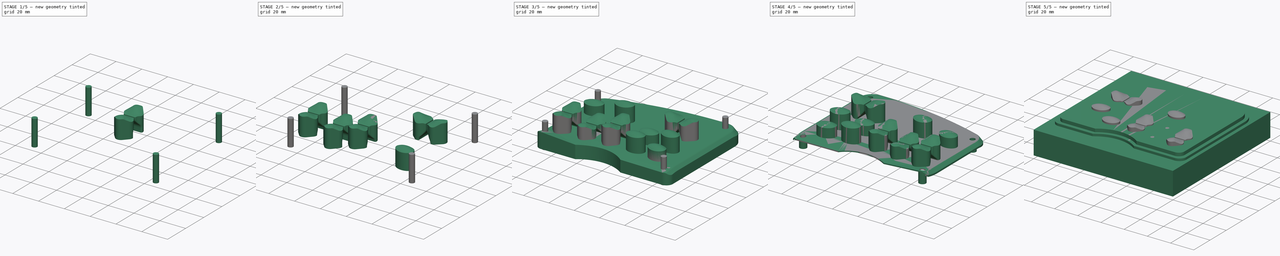
[diagram: build sequence overview — one tinted view per stage of 5, left to right]
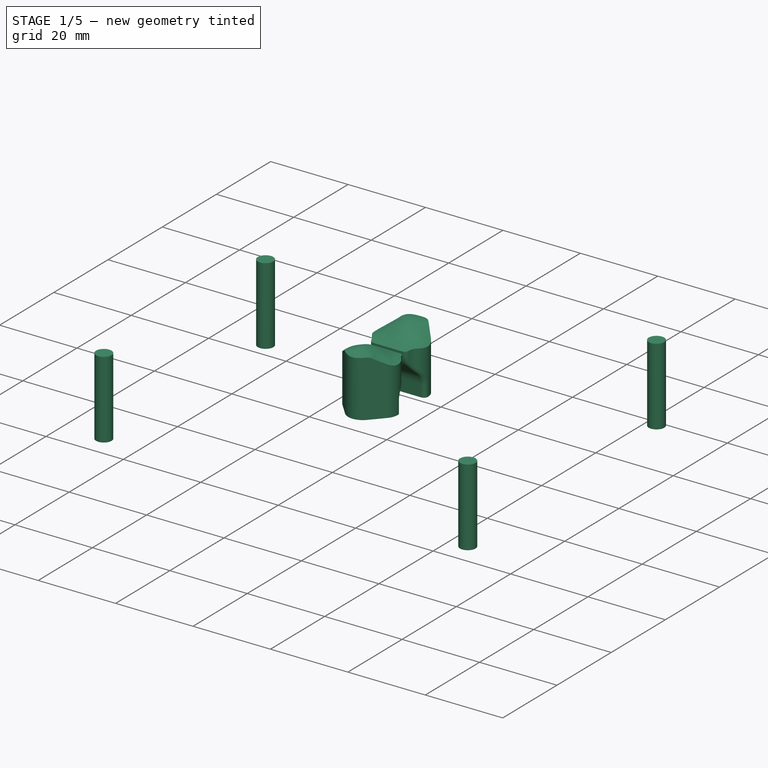
[diagram: stage 1 of 5 — iso view after this stage's code; geometry added in this stage tinted green]
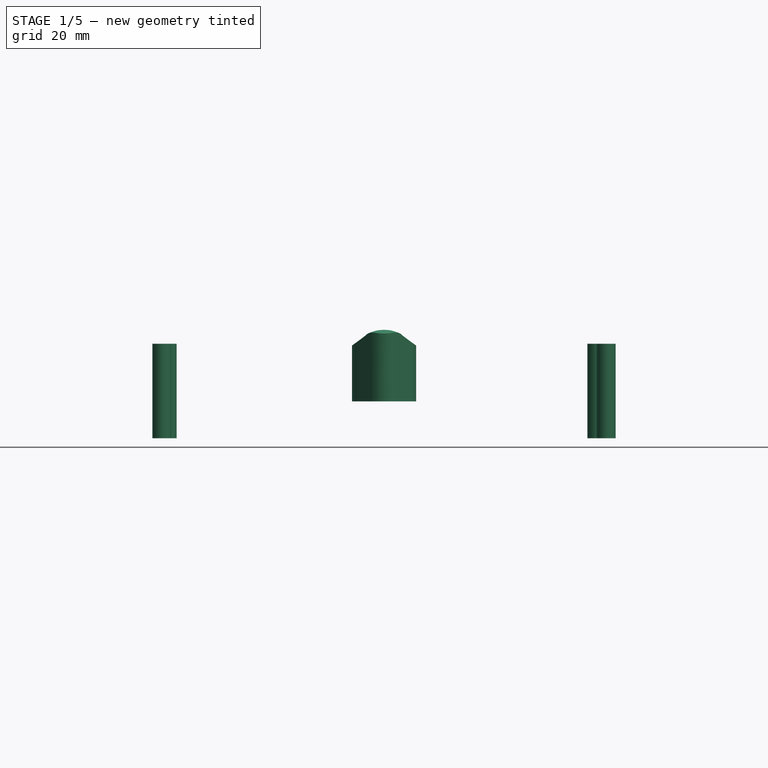
[diagram: stage 1 of 5 — front view after this stage's code; geometry added in this stage tinted green]
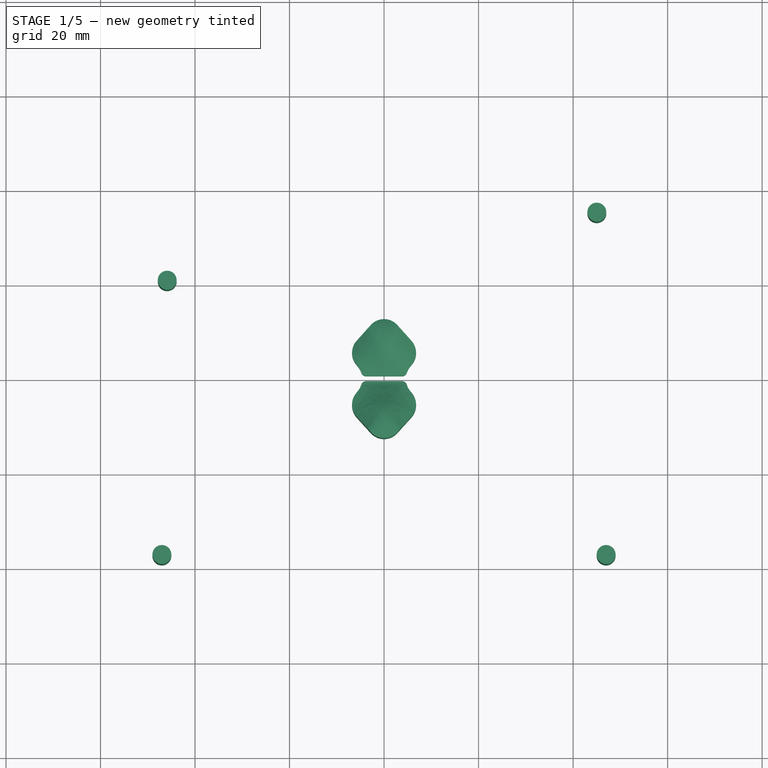
[diagram: stage 1 of 5 — top view after this stage's code; geometry added in this stage tinted green]
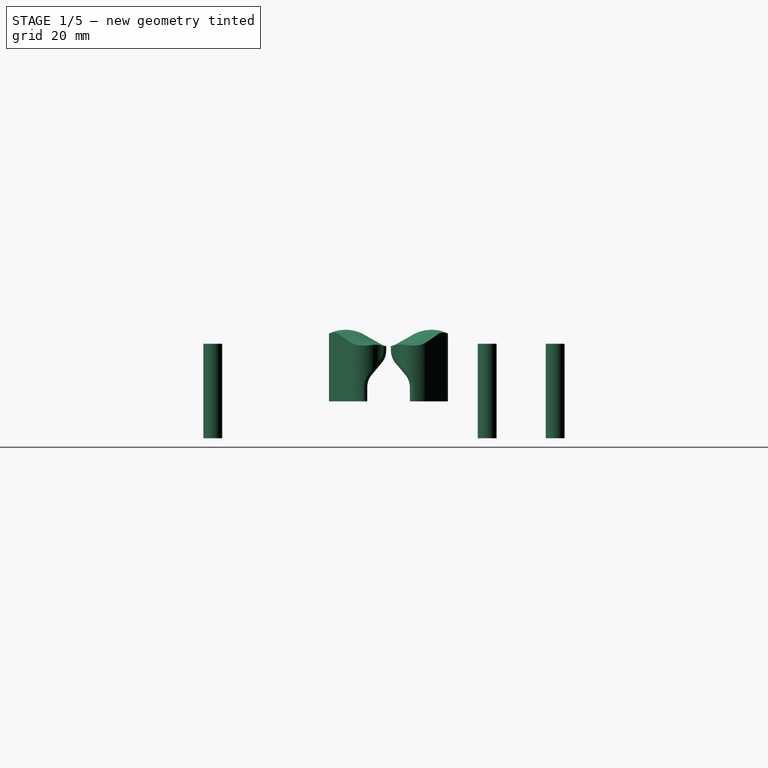
[diagram: stage 1 of 5 — right view after this stage's code; geometry added in this stage tinted green]
FCSTD DOCUMENT  (FreeCAD 0.17R13509 (Git))
Label: left_buttons
License: All rights reserved
LicenseURL: http://en.wikipedia.org/wiki/All_rights_reserved
objects: Part::FeaturePython×13, Part::Feature×12, Sketcher::SketchObject×6, PartDesign::Pad×6, Part::MultiFuse×6, Part::Cut×3, Part::MultiCommon×1, Part::Thickness×1, Part::Mirroring×1
note: 55 computed .brp shape members not serialized (recipe doc carries the construction recipe); baked Part::Feature solids carry a one-line shape summary decoded from their .brp

FEATURE [Part::Feature] Part__Feature005  label="Fillet"
  shape: bbox 14 x 18.98 x 18.65 mm, 33 faces (baked)
FEATURE [Part::Feature] Part__Feature006  label="Fillet001"
  shape: bbox 14 x 17.81 x 18.65 mm, 33 faces (baked)
FEATURE [Part::MultiFuse] Fusion001  label="sw_short_base"
  Shapes = -> [Part__Feature006,Part__Feature005]
FEATURE [Sketcher::SketchObject] Sketch003
  MapMode = 5
  Placement = pos=(0,0,-7) rot=(0,0,1;0rad)
  sketch-geometry (4):
    g0: Circle CenterX=-45.8812 CenterY=20.8615 CenterZ=0 NormalX=0 NormalY=0 NormalZ=1 AngleXU=0 Radius=2
    g1: Circle CenterX=-46.9795 CenterY=-37.2115 CenterZ=0 NormalX=0 NormalY=0 NormalZ=1 AngleXU=0 Radius=2
    g2: Circle CenterX=45.0081 CenterY=35.2441 CenterZ=0 NormalX=0 NormalY=0 NormalZ=1 AngleXU=0 Radius=2
    g3: Circle CenterX=46.9819 CenterY=-37.1987 CenterZ=0 NormalX=0 NormalY=0 NormalZ=1 AngleXU=0 Radius=2
  constraints (4):
    c: Radius(g1) = 2
    c: Equal(g3,g1)
    c: Equal(g1,g0)
    c: Equal(g0,g2)
FEATURE [PartDesign::Pad] Pad002  label="screw_holes"
  Length = 20
  Length2 = 100
  Placement = pos=(0,0,-7) rot=(0,0,1;0rad)
  Profile = -> Sketch003
  Type = 0
FEATURE [Part::FeaturePython] Clone011  label="screw_holes001"  # Draft clone (typed FeaturePython)
  AttacherType = Attacher::AttachEngine3D
  Fuse = false
  Objects = -> [Pad002]
  Placement = pos=(90.9,14.4,-7) rot=(0,0,1;0rad)
  Scale = (1,1,1)
FEATURE [Part::FeaturePython] Clone012  label="screw_holes002"  # Draft clone (typed FeaturePython)
  AttacherType = Attacher::AttachEngine3D
  Fuse = false
  Objects = -> [Clone011]
  Placement = pos=(92.87,-58.05,-7) rot=(0,0,1;0rad)
  Scale = (1,1,1)
FEATURE [Part::FeaturePython] Clone013  label="screw_holes003"  # Draft clone (typed FeaturePython)
  AttacherType = Attacher::AttachEngine3D
  Fuse = false
  Objects = -> [Clone012]
  Placement = pos=(-1.13,-58.05,-7) rot=(0,0,1;0rad)
  Scale = (1,1,1)
FEATURE [Part::MultiFuse] Fusion005
  Shapes = -> [Pad002,Clone011,Clone012,Clone013]
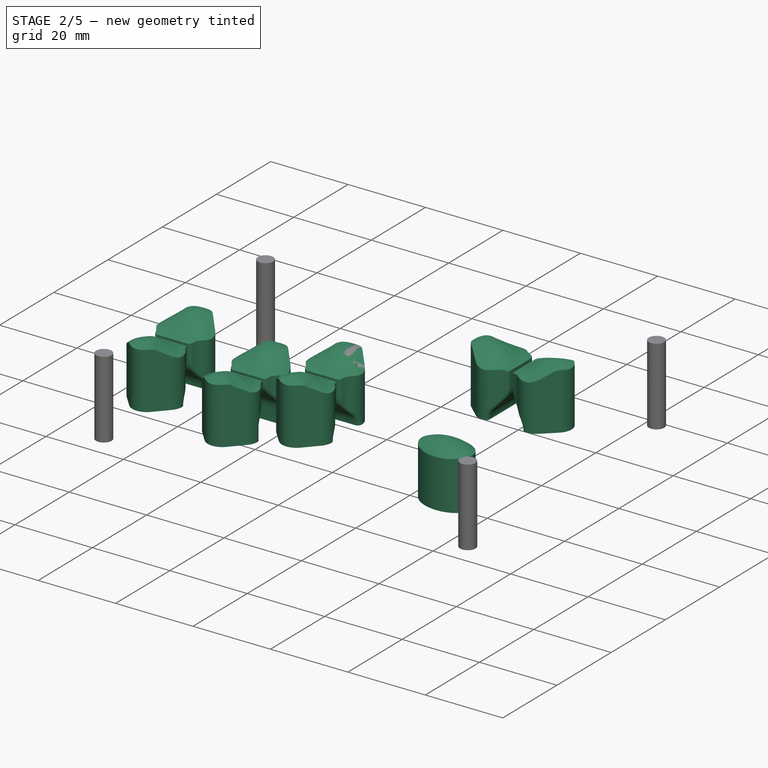
[diagram: stage 2 of 5 — iso view after this stage's code; geometry added in this stage tinted green]
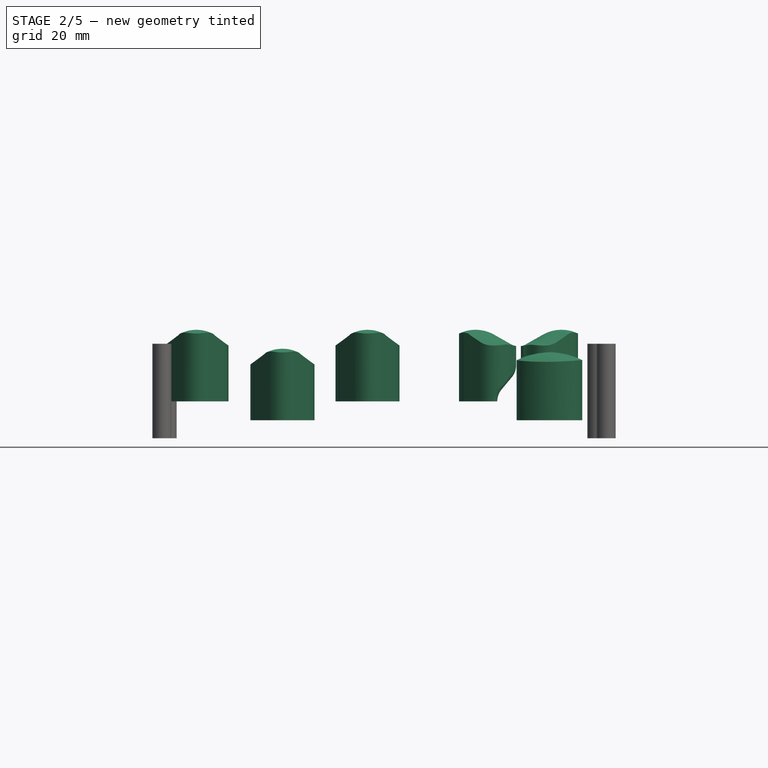
[diagram: stage 2 of 5 — front view after this stage's code; geometry added in this stage tinted green]
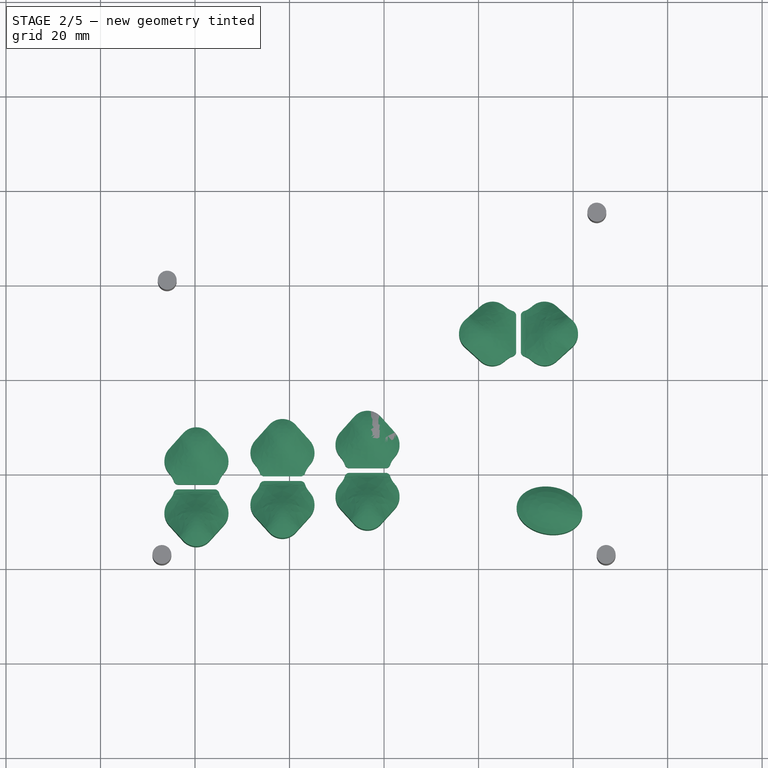
[diagram: stage 2 of 5 — top view after this stage's code; geometry added in this stage tinted green]
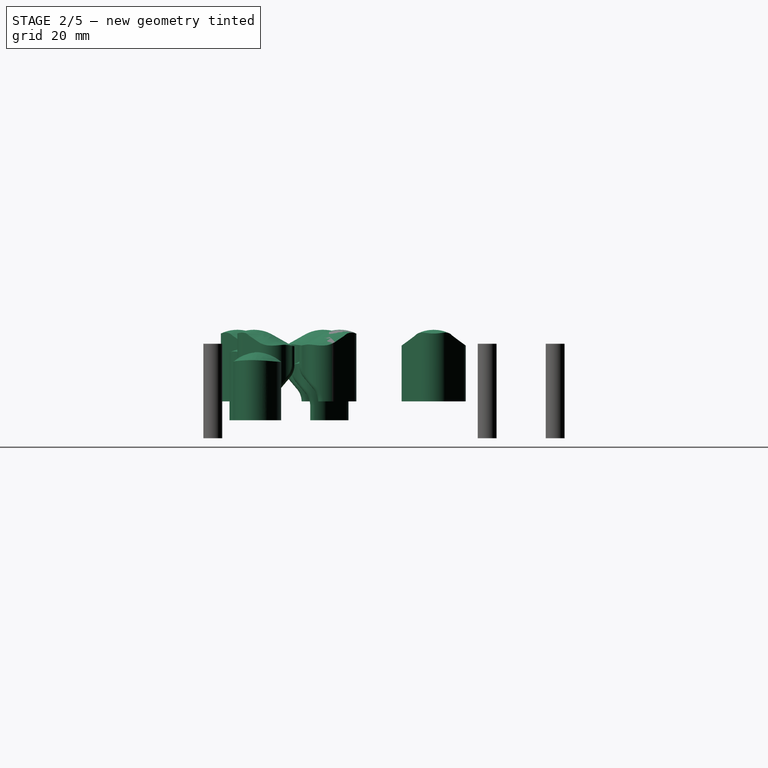
[diagram: stage 2 of 5 — right view after this stage's code; geometry added in this stage tinted green]
FEATURE [Part::Feature] Solid
  shape: bbox 121 x 102.6 x 20.47 mm, 25 faces (baked)
FEATURE [Part::Feature] Part__Feature002  label="but_base"
  shape: bbox 34.77 x 29.5 x 14.4 mm, 4 faces (baked)
FEATURE [Part::Feature] Part__Feature003  label="sw_base001"
  shape: bbox 14 x 17.81 x 18.83 mm, 30 faces (baked)
FEATURE [Part::Feature] Part__Feature004  label="sw_base002"
  shape: bbox 14 x 18.98 x 18.83 mm, 30 faces (baked)
FEATURE [Part::MultiFuse] Fusion  label="sw_base"
  Shapes = -> [Part__Feature004,Part__Feature003]
FEATURE [Part::FeaturePython] Clone005  label="but6"  # Draft clone (typed FeaturePython)
  Objects = -> [Part__Feature002]
  Placement = pos=(35,-27.8,-4) rot=(0,0,-1;0.174533rad)
  Scale = (1,1,1)
FEATURE [Part::FeaturePython] Clone006  label="sw1"  # Draft clone (typed FeaturePython)
  Objects = -> [Fusion]
  Placement = pos=(-39.7,-22.9,0) rot=(0,0,1;0rad)
  Scale = (1,1,1)
FEATURE [Part::FeaturePython] Clone008  label="sw3"  # Draft clone (typed FeaturePython)
  Objects = -> [Fusion]
  Placement = pos=(-3.5,-19.4,0) rot=(0,0,1;0rad)
  Scale = (1,1,1)
FEATURE [Part::FeaturePython] Clone009  label="sw4"  # Draft clone (typed FeaturePython)
  Objects = -> [Fusion]
  Placement = pos=(28.45,9.55,0) rot=(0,0,1;1.5708rad)
  Scale = (1,1,1)
FEATURE [Part::FeaturePython] Clone010  label="sw2"  # Draft clone (typed FeaturePython)
  Objects = -> [Fusion001]
  Placement = pos=(-21.5,-21.07,-4) rot=(0,0,1;0rad)
  Scale = (1,1,1)
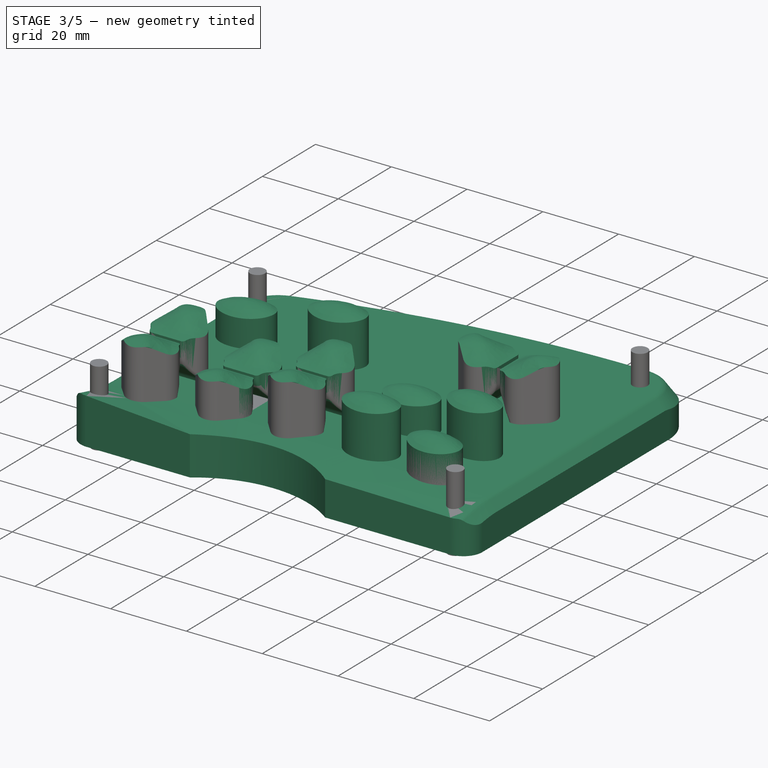
[diagram: stage 3 of 5 — iso view after this stage's code; geometry added in this stage tinted green]
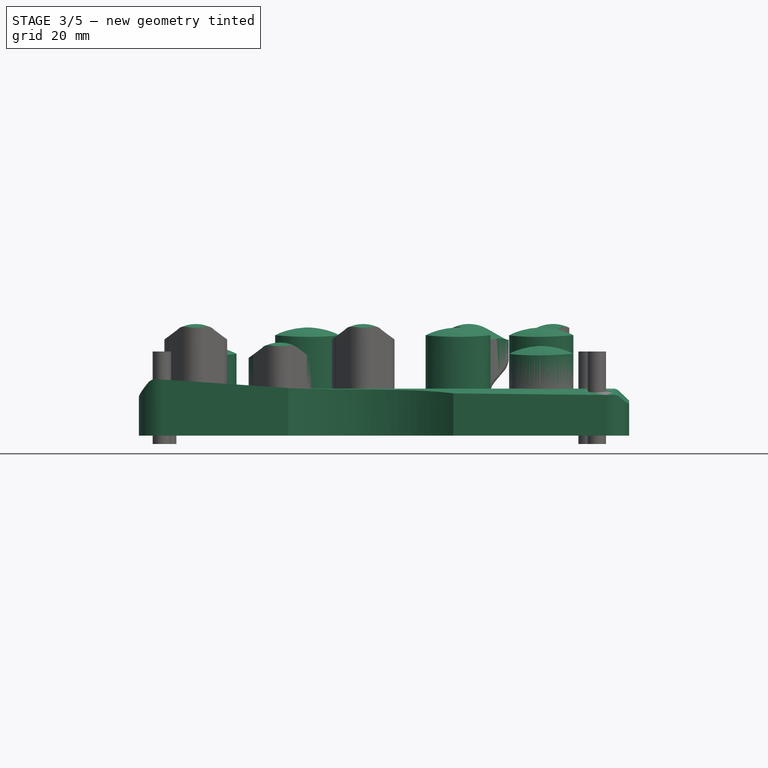
[diagram: stage 3 of 5 — front view after this stage's code; geometry added in this stage tinted green]
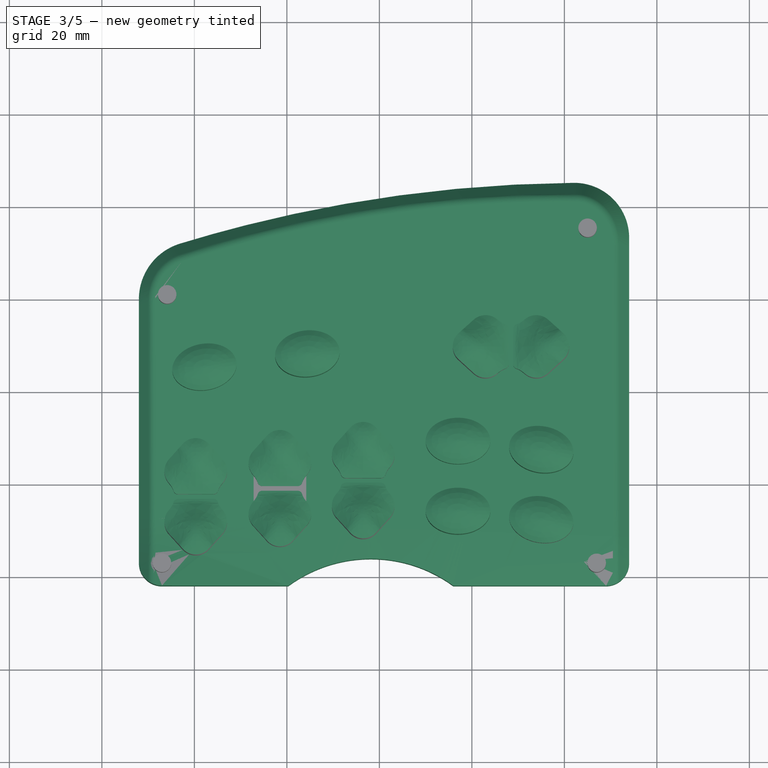
[diagram: stage 3 of 5 — top view after this stage's code; geometry added in this stage tinted green]
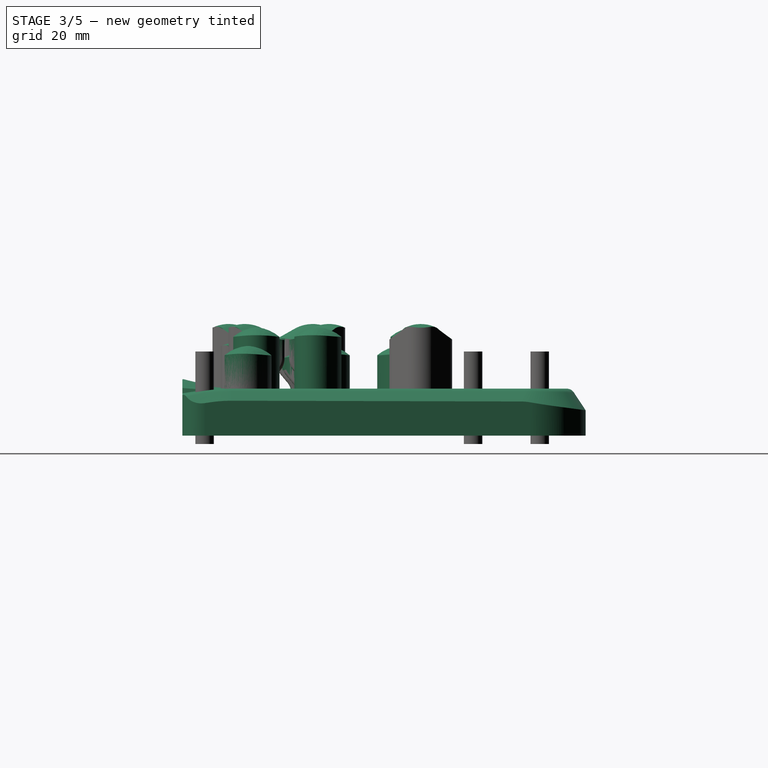
[diagram: stage 3 of 5 — right view after this stage's code; geometry added in this stage tinted green]
FEATURE [Part::FeaturePython] Clone  label="but1"  # Draft clone (typed FeaturePython)
  Objects = -> [Part__Feature002]
  Placement = pos=(-37.83,5.2,-4) rot=(0,0,1;0.174533rad)
  Scale = (1,1,1)
FEATURE [Part::FeaturePython] Clone001  label="but2"  # Draft clone (typed FeaturePython)
  Objects = -> [Part__Feature002]
  Placement = pos=(-15.57,8.02,0) rot=(0,0,1;0.10472rad)
  Scale = (1,1,1)
FEATURE [Part::FeaturePython] Clone002  label="but3"  # Draft clone (typed FeaturePython)
  Objects = -> [Part__Feature002]
  Placement = pos=(17,-10.8,-4) rot=(0,0,1;0rad)
  Scale = (1,1,1)
FEATURE [Part::FeaturePython] Clone003  label="but4"  # Draft clone (typed FeaturePython)
  Objects = -> [Part__Feature002]
  Placement = pos=(17,-26,0) rot=(0,0,1;0rad)
  Scale = (1,1,1)
FEATURE [Part::FeaturePython] Clone004  label="but5"  # Draft clone (typed FeaturePython)
  Objects = -> [Part__Feature002]
  Placement = pos=(35,-12.7,0) rot=(0,0,-1;0.174533rad)
  Scale = (1,1,1)
FEATURE [Part::MultiFuse] Fusion002  label="buttons"
  Placement = pos=(0,0,3) rot=(0,0,1;0rad)
  Shapes = -> [Clone009,Clone001,Clone003,Clone004,Clone008,Clone005,Clone002,Clone006,Clone,Clone010]
FEATURE [Part::MultiFuse] Fusion003
  Shapes = -> [Fusion002,Solid]
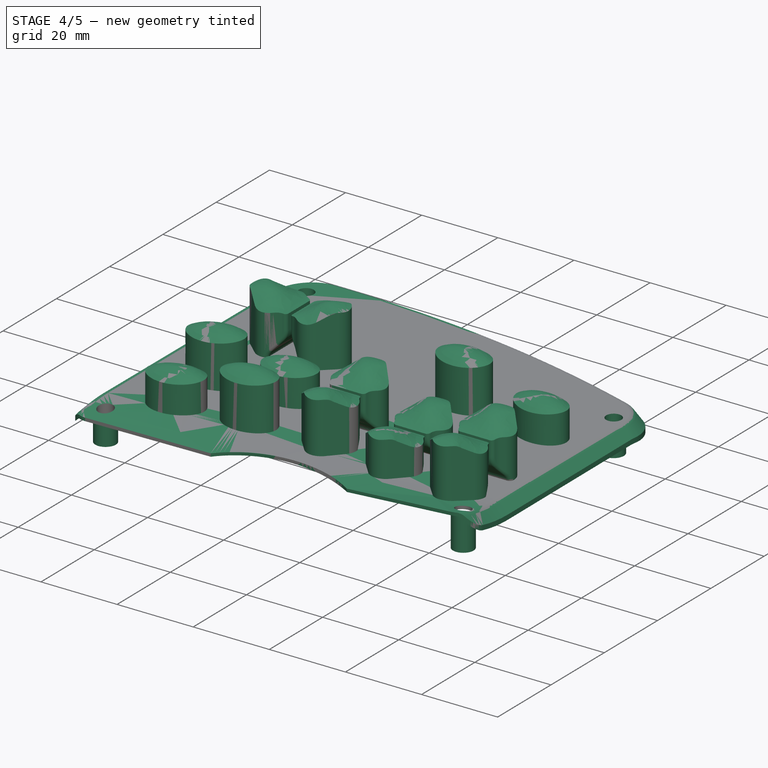
[diagram: stage 4 of 5 — iso view after this stage's code; geometry added in this stage tinted green]
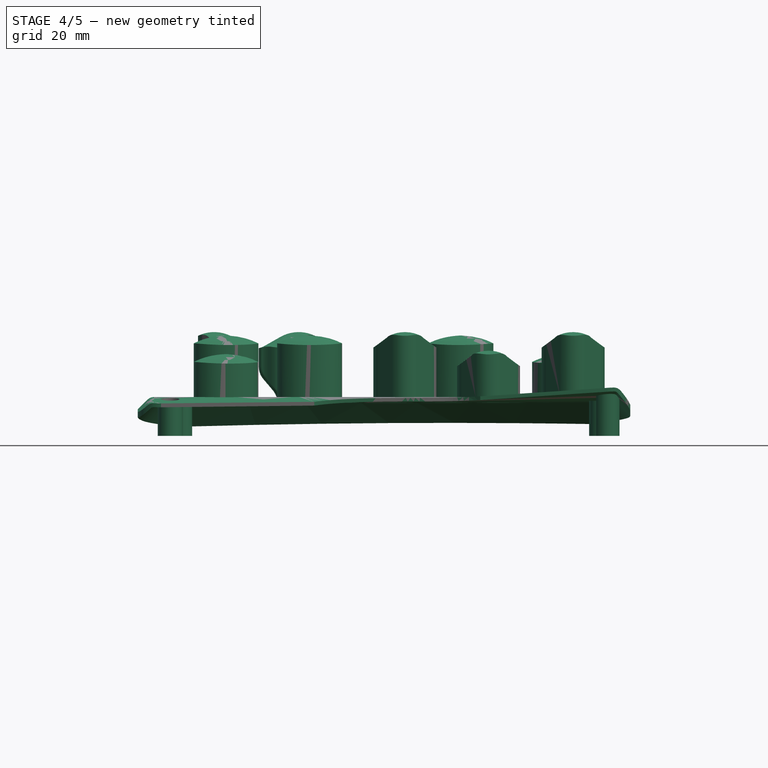
[diagram: stage 4 of 5 — front view after this stage's code; geometry added in this stage tinted green]
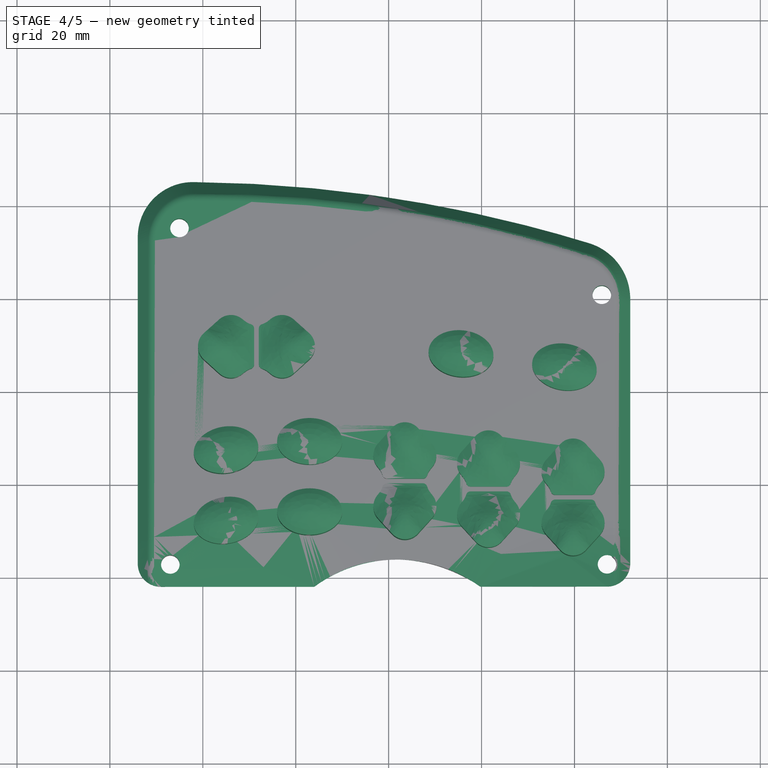
[diagram: stage 4 of 5 — top view after this stage's code; geometry added in this stage tinted green]
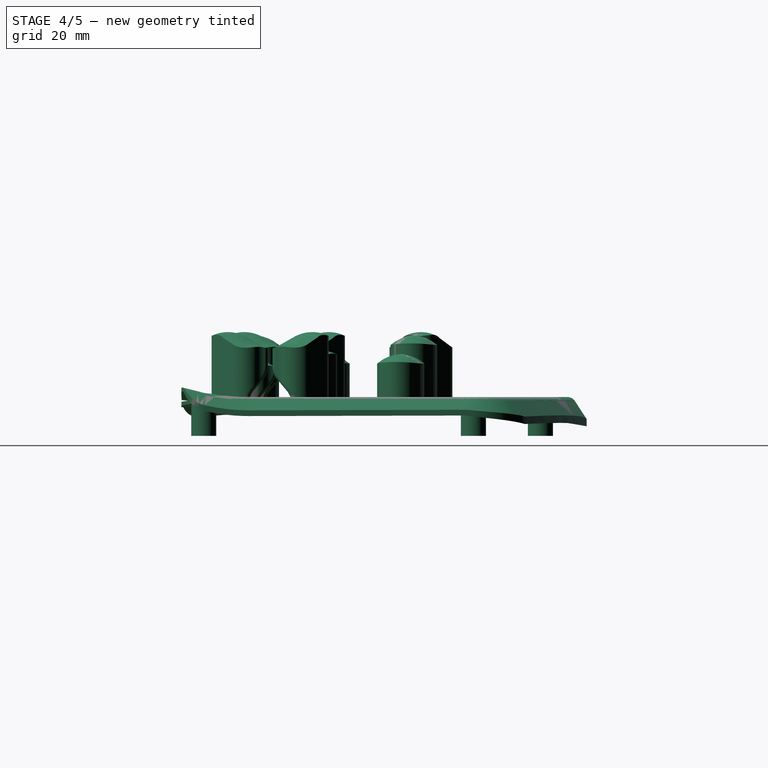
[diagram: stage 4 of 5 — right view after this stage's code; geometry added in this stage tinted green]
FEATURE [Part::Feature] Part__Feature007  label="pcb"
  Placement = pos=(0,0,-3.6) rot=(0,0,1;0rad)
  shape: bbox 99.95 x 80.42 x 43.3 mm, 3770 faces (baked)
FEATURE [Sketcher::SketchObject] Sketch
  MapMode = 5
  Placement = pos=(0,0,8) rot=(0,0,1;0rad)
  sketch-geometry (6):
    g0: Circle CenterX=-45.85 CenterY=20.85 CenterZ=0 NormalX=0 NormalY=0 NormalZ=1 AngleXU=0 Radius=2.7
    g1: Circle CenterX=45 CenterY=35.27 CenterZ=0 NormalX=0 NormalY=0 NormalZ=1 AngleXU=0 Radius=2.7
    g2: ArcOfCircle CenterX=-47 CenterY=-37.2 CenterZ=0 NormalX=0 NormalY=0 NormalZ=1 AngleXU=0 Radius=2.7 StartAngle=2.12179 EndAngle=5.75625
    g3: Circle CenterX=47 CenterY=-37.2 CenterZ=0 NormalX=0 NormalY=0 NormalZ=1 AngleXU=0 Radius=2.7
    g4: LineSegment StartX=-47 StartY=-37.2 StartZ=0 EndX=-48.4135 EndY=-34.8996 EndZ=0
    g5: LineSegment StartX=-47 StartY=-37.2 StartZ=0 EndX=-44.6662 EndY=-38.5578 EndZ=0
  constraints (16):
    c: Radius(g0) = 2.7
    c: Radius(g1) = 2.7
    c: Radius(g2) = 2.7
    c: Radius(g3) = 2.7
    c: DistanceX(g0,g-1) = 45.85
    c: DistanceY(g-1,g0) = 20.85
    c: Coincident(g2,g4)
    c: Coincident(g2,g5)
    c: DistanceY(g2,g-1) = 37.2
    c: DistanceX(g2,g-1) = 47
    c: DistanceX(g-1,g1) = 45
    c: DistanceY(g-1,g1) = 35.27
    c: DistanceX(g-1,g3) = 47
    c: DistanceY(g3,g-1) = 37.2
    c: Coincident(g2,g4)
    c: Coincident(g2,g5)
FEATURE [PartDesign::Pad] Pad001
  Length = 11.4
  Length2 = 100
  Placement = pos=(0,0,8) rot=(0,0,1;0rad)
  Profile = -> Sketch
  Reversed = true
  Type = 0
FEATURE [Part::Feature] Part__Feature008  label="collar_bottom_mold001"
  Placement = pos=(0,0,-0.6) rot=(0,0,1;0rad)
  shape: bbox 121 x 102.6 x 20.47 mm, 25 faces (baked)
FEATURE [Part::MultiCommon] Common  label="screw_pads"
  Shapes = -> [Part__Feature008,Pad001]
FEATURE [Part::Feature] Solid003
  Placement = pos=(0,0,0.2) rot=(0,0,1;0rad)
  shape: bbox 129.2 x 122 x 31.08 mm, 50 faces (baked)
FEATURE [Part::Cut] Cut001
  Base = -> Fusion003
  Tool = -> Solid003
FEATURE [Part::MultiFuse] Fusion004
  Shapes = -> [Common,Cut001]
FEATURE [Part::Cut] Cut002
  Base = -> Fusion004
  Tool = -> Fusion005
FEATURE [Part::Mirroring] Part__Mirroring  label="right"
  Base = (0,0,0)
  Normal = (1,0,0)
  Source = -> Cut002
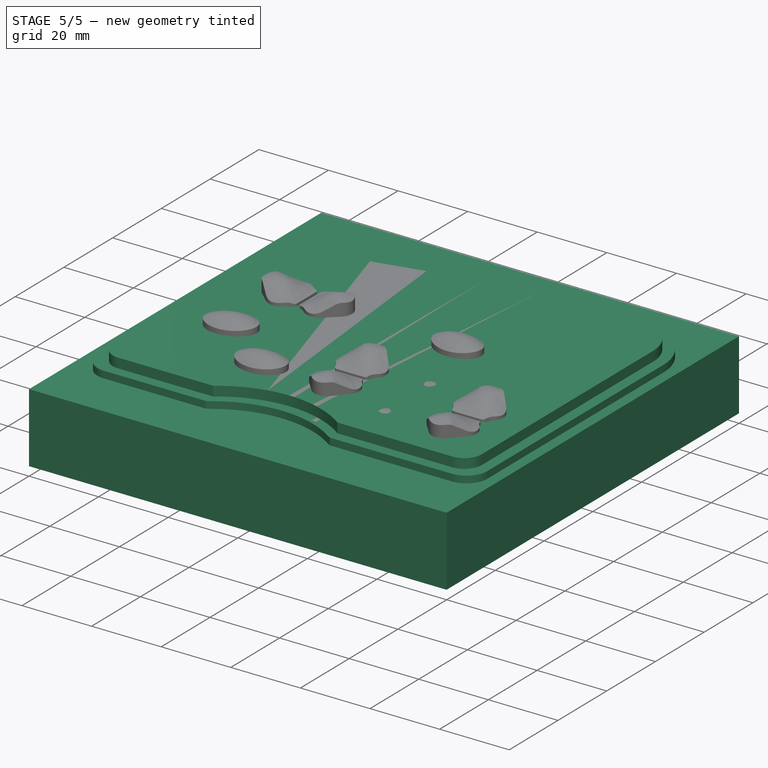
[diagram: stage 5 of 5 — iso view after this stage's code; geometry added in this stage tinted green]
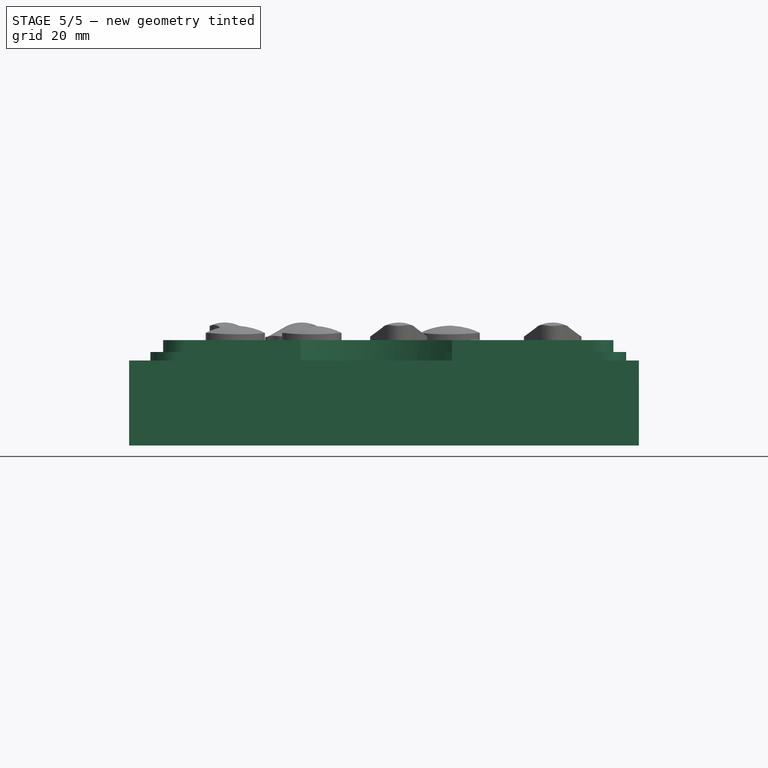
[diagram: stage 5 of 5 — front view after this stage's code; geometry added in this stage tinted green]
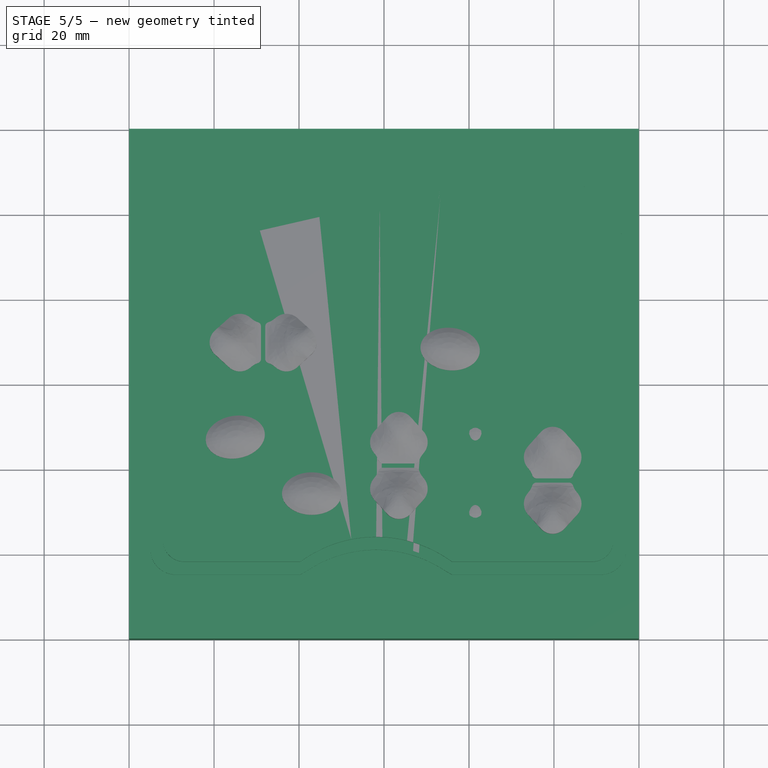
[diagram: stage 5 of 5 — top view after this stage's code; geometry added in this stage tinted green]
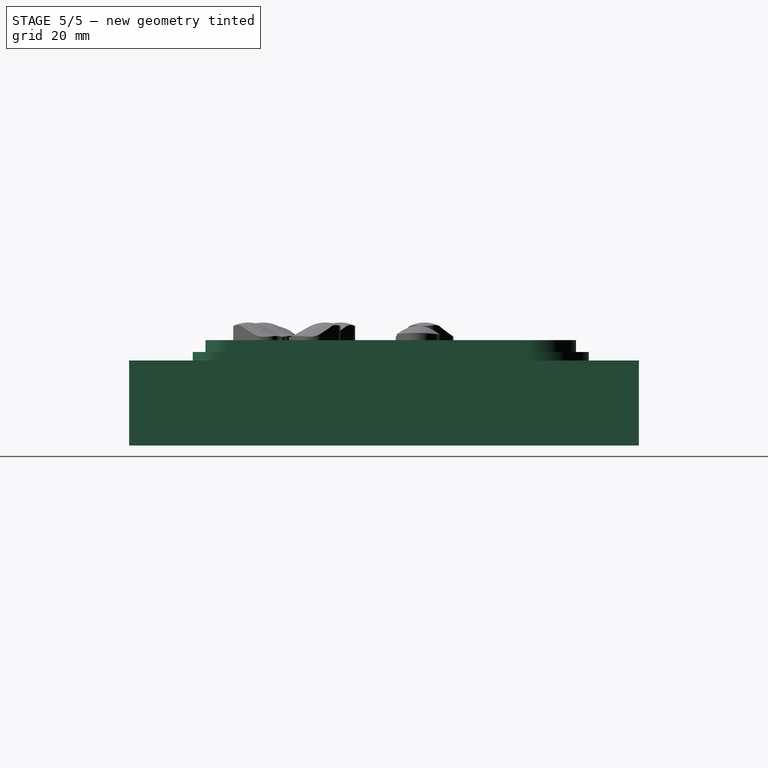
[diagram: stage 5 of 5 — right view after this stage's code; geometry added in this stage tinted green]
FEATURE [Part::Feature] Part__Feature  label="left_collar"
  shape: bbox 271.3 x 302.6 x 177.8 mm, 90 faces (baked)
FEATURE [Sketcher::SketchObject] Sketch002
  MapMode = 5
  Placement = pos=(0,0,-5.2) rot=(0,0,1;0rad)
  sketch-geometry (10):
    g0: LineSegment StartX=54 StartY=-37 StartZ=0 EndX=54 EndY=33.3 EndZ=0
    g1: ArcOfCircle CenterX=42.1 CenterY=33.3 CenterZ=0 NormalX=0 NormalY=0 NormalZ=1 AngleXU=0 Radius=11.9 StartAngle=0 EndAngle=1.58019
    g2: ArcOfCircle CenterX=-39.4 CenterY=20 CenterZ=0 NormalX=0 NormalY=0 NormalZ=1 AngleXU=0 Radius=12.6 StartAngle=1.86815 EndAngle=3.14159
    g3: LineSegment StartX=-52 StartY=20 StartZ=0 EndX=-52 EndY=-37 EndZ=0
    g4: ArcOfCircle CenterX=44.8063 CenterY=-254.787 CenterZ=0 NormalX=0 NormalY=0 NormalZ=1 AngleXU=0 Radius=300 StartAngle=1.58019 EndAngle=1.86815
    g5: ArcOfCircle CenterX=-1.85 CenterY=-66.3602 CenterZ=0 NormalX=0 NormalY=0 NormalZ=1 AngleXU=0 Radius=30.2 StartAngle=0.938424 EndAngle=2.20317
    g6: LineSegment StartX=49 StartY=-42 StartZ=0 EndX=16 EndY=-42 EndZ=0
    g7: LineSegment StartX=-19.7 StartY=-42 StartZ=0 EndX=-47 EndY=-42 EndZ=0
    g8: ArcOfCircle CenterX=-47 CenterY=-37 CenterZ=0 NormalX=0 NormalY=0 NormalZ=1 AngleXU=0 Radius=5 StartAngle=3.14159 EndAngle=4.71239
    g9: ArcOfCircle CenterX=49 CenterY=-37 CenterZ=0 NormalX=0 NormalY=0 NormalZ=1 AngleXU=0 Radius=5 StartAngle=4.71239 EndAngle=6.28319
  constraints (31):
    c: Vertical(g0)
    c: Tangent(g0,g1) = -1.5708
    c: Coincident(g2,g3)
    c: Vertical(g3)
    c: Tangent(g2,g3)
    c: Coincident(g4,g2)
    c: Coincident(g4,g1)
    c: Tangent(g1,g4)
    c: Tangent(g4,g2)
    c: DistanceY(g-1,g2) = 20
    c: DistanceX(g2,g-1) = 39.4
    c: DistanceY(g-1,g1) = 33.3
    c: DistanceX(g-1,g1) = 42.1
    c: Radius(g4) = 300
    c: Coincident(g6,g5)
    c: Horizontal(g6)
    c: Coincident(g7,g5)
    c: Horizontal(g7)
    c: DistanceX(g5,g-1) = 19.7
    c: DistanceX(g-1,g5) = 16
    c: Radius(g5) = 30.2
    c: Tangent(g3,g8) = -1.5708
    c: Tangent(g7,g8) = 1.5708
    c: DistanceX(g3,g-1) = 52
    c: DistanceY(g7,g-1) = 42
    c: Radius(g8) = 5
    c: Tangent(g6,g9) = 1.5708
    c: Tangent(g0,g9) = -1.5708
    c: DistanceX(g-1,g0) = 54
    c: DistanceY(g6,g-1) = 42
    c: Equal(g9,g8)
FEATURE [PartDesign::Pad] Pad
  Length = 20
  Length2 = 100
  Placement = pos=(0,0,-5.2) rot=(0,0,1;0rad)
  Profile = -> Sketch002
  Type = 0
FEATURE [Sketcher::SketchObject] Sketch004
  MapMode = 5
  Placement = pos=(0,0,-8) rot=(0,0,1;0rad)
  sketch-geometry (10):
    g0: LineSegment StartX=56 StartY=-39 StartZ=0 EndX=56 EndY=33.3 EndZ=0
    g1: ArcOfCircle CenterX=42.1 CenterY=33.3 CenterZ=0 NormalX=0 NormalY=0 NormalZ=1 AngleXU=0 Radius=13.9 StartAngle=0 EndAngle=1.57918
    g2: ArcOfCircle CenterX=-39.4 CenterY=20 CenterZ=0 NormalX=0 NormalY=0 NormalZ=1 AngleXU=0 Radius=14.6 StartAngle=1.86917 EndAngle=3.14159
    g3: LineSegment StartX=-54 StartY=20 StartZ=0 EndX=-54 EndY=-39 EndZ=0
    g4: ArcOfCircle CenterX=44.4976 CenterY=-252.79 CenterZ=0 NormalX=0 NormalY=0 NormalZ=1 AngleXU=0 Radius=300 StartAngle=1.57918 EndAngle=1.86917
    g5: ArcOfCircle CenterX=-1.85 CenterY=-68.3602 CenterZ=0 NormalX=0 NormalY=0 NormalZ=1 AngleXU=0 Radius=30.2 StartAngle=0.938424 EndAngle=2.20317
    g6: LineSegment StartX=51 StartY=-44 StartZ=0 EndX=16 EndY=-44 EndZ=0
    g7: LineSegment StartX=-19.7 StartY=-44 StartZ=0 EndX=-49 EndY=-44 EndZ=0
    g8: ArcOfCircle CenterX=-49 CenterY=-39 CenterZ=0 NormalX=0 NormalY=0 NormalZ=1 AngleXU=0 Radius=5 StartAngle=3.14159 EndAngle=4.71239
    g9: ArcOfCircle CenterX=51 CenterY=-39 CenterZ=0 NormalX=0 NormalY=0 NormalZ=1 AngleXU=0 Radius=5 StartAngle=4.71239 EndAngle=6.28319
  constraints (31):
    c: Vertical(g0)
    c: Tangent(g0,g1) = -1.5708
    c: Coincident(g2,g3)
    c: Vertical(g3)
    c: Tangent(g2,g3)
    c: Coincident(g4,g2)
    c: Coincident(g4,g1)
    c: Tangent(g1,g4)
    c: Tangent(g4,g2)
    c: DistanceY(g-1,g2) = 20
    c: DistanceX(g2,g-1) = 39.4
    c: DistanceY(g-1,g1) = 33.3
    c: DistanceX(g-1,g1) = 42.1
    c: Radius(g4) = 300
    c: Coincident(g6,g5)
    c: Horizontal(g6)
    c: Coincident(g7,g5)
    c: Horizontal(g7)
    c: DistanceX(g5,g-1) = 19.7
    c: DistanceX(g-1,g5) = 16
    c: Radius(g5) = 30.2
    c: Tangent(g3,g8) = -1.5708
    c: Tangent(g7,g8) = 1.5708
    c: DistanceX(g3,g-1) = 54
    c: DistanceY(g7,g-1) = 44
    c: Radius(g8) = 5
    c: Tangent(g6,g9) = 1.5708
    c: Tangent(g0,g9) = -1.5708
    c: DistanceX(g-1,g0) = 56
    c: DistanceY(g6,g-1) = 44
    c: Equal(g9,g8)
FEATURE [PartDesign::Pad] Pad003
  Length = 20
  Length2 = 100
  Placement = pos=(0,0,-8) rot=(0,0,1;0rad)
  Profile = -> Sketch004
  Type = 0
FEATURE [Sketcher::SketchObject] Sketch005
  MapMode = 5
  Placement = pos=(0,0,-10) rot=(0,0,1;0rad)
  sketch-geometry (4):
    g0: LineSegment StartX=-60 StartY=60 StartZ=0 EndX=60 EndY=60 EndZ=0
    g1: LineSegment StartX=60 StartY=60 StartZ=0 EndX=60 EndY=-60 EndZ=0
    g2: LineSegment StartX=60 StartY=-60 StartZ=0 EndX=-60 EndY=-60 EndZ=0
    g3: LineSegment StartX=-60 StartY=-60 StartZ=0 EndX=-60 EndY=60 EndZ=0
  constraints (12):
    c: Coincident(g0,g1)
    c: Coincident(g1,g2)
    c: Coincident(g2,g3)
    c: Coincident(g3,g0)
    c: Horizontal(g0)
    c: Horizontal(g2)
    c: Vertical(g1)
    c: Vertical(g3)
    c: Symmetric(g1,g0,g-1)
    c: Symmetric(g0,g0,g-2)
    c: Equal(g3,g0)
    c: DistanceY(g3,g3) = 120
FEATURE [Part::Feature] Part__Feature011  label="left_collar001"
  shape: bbox 271.3 x 302.6 x 177.8 mm, 90 faces (baked)
FEATURE [Part::Feature] Solid002
  shape: bbox 127.2 x 107.5 x 26.98 mm, 25 faces (baked)
FEATURE [Sketcher::SketchObject] Sketch006
  MapMode = 5
  Placement = pos=(0,0,-8) rot=(0,0,1;0rad)
  sketch-geometry (10):
    g0: LineSegment StartX=56 StartY=-39 StartZ=0 EndX=56 EndY=33.3 EndZ=0
    g1: ArcOfCircle CenterX=42.1 CenterY=33.3 CenterZ=0 NormalX=0 NormalY=0 NormalZ=1 AngleXU=0 Radius=13.9 StartAngle=0 EndAngle=1.57918
    g2: ArcOfCircle CenterX=-39.4 CenterY=20 CenterZ=0 NormalX=0 NormalY=0 NormalZ=1 AngleXU=0 Radius=14.6 StartAngle=1.86917 EndAngle=3.14159
    g3: LineSegment StartX=-54 StartY=20 StartZ=0 EndX=-54 EndY=-39 EndZ=0
    g4: ArcOfCircle CenterX=44.4976 CenterY=-252.79 CenterZ=0 NormalX=0 NormalY=0 NormalZ=1 AngleXU=0 Radius=300 StartAngle=1.57918 EndAngle=1.86917
    g5: ArcOfCircle CenterX=-1.85 CenterY=-68.3602 CenterZ=0 NormalX=0 NormalY=0 NormalZ=1 AngleXU=0 Radius=30.2 StartAngle=0.938424 EndAngle=2.20317
    g6: LineSegment StartX=51 StartY=-44 StartZ=0 EndX=16 EndY=-44 EndZ=0
    g7: LineSegment StartX=-19.7 StartY=-44 StartZ=0 EndX=-49 EndY=-44 EndZ=0
    g8: ArcOfCircle CenterX=-49 CenterY=-39 CenterZ=0 NormalX=0 NormalY=0 NormalZ=1 AngleXU=0 Radius=5 StartAngle=3.14159 EndAngle=4.71239
    g9: ArcOfCircle CenterX=51 CenterY=-39 CenterZ=0 NormalX=0 NormalY=0 NormalZ=1 AngleXU=0 Radius=5 StartAngle=4.71239 EndAngle=6.28319
  constraints (31):
    c: Vertical(g0)
    c: Tangent(g0,g1) = -1.5708
    c: Coincident(g2,g3)
    c: Vertical(g3)
    c: Tangent(g2,g3)
    c: Coincident(g4,g2)
    c: Coincident(g4,g1)
    c: Tangent(g1,g4)
    c: Tangent(g4,g2)
    c: DistanceY(g-1,g2) = 20
    c: DistanceX(g2,g-1) = 39.4
    c: DistanceY(g-1,g1) = 33.3
    c: DistanceX(g-1,g1) = 42.1
    c: Radius(g4) = 300
    c: Coincident(g6,g5)
    c: Horizontal(g6)
    c: Coincident(g7,g5)
    c: Horizontal(g7)
    c: DistanceX(g5,g-1) = 19.7
    c: DistanceX(g-1,g5) = 16
    c: Radius(g5) = 30.2
    c: Tangent(g3,g8) = -1.5708
    c: Tangent(g7,g8) = 1.5708
    c: DistanceX(g3,g-1) = 54
    c: DistanceY(g7,g-1) = 44
    c: Radius(g8) = 5
    c: Tangent(g6,g9) = 1.5708
    c: Tangent(g0,g9) = -1.5708
    c: DistanceX(g-1,g0) = 56
    c: DistanceY(g6,g-1) = 44
    c: Equal(g9,g8)
FEATURE [PartDesign::Pad] Pad005
  Length = 20
  Length2 = 100
  Placement = pos=(0,0,-8) rot=(0,0,1;0rad)
  Profile = -> Sketch006
  Type = 0
FEATURE [Part::Cut] Cut
  Base = -> Pad005
  Tool = -> Solid002
FEATURE [Part::Thickness] Thickness
  Faces = -> Cut [Face5]
  Intersection = false
  Join = 0
  Mode = 0
  SelfIntersection = false
  Value = 1
FEATURE [PartDesign::Pad] Pad004
  Length = 20
  Length2 = 100
  Placement = pos=(0,0,-10) rot=(0,0,1;0rad)
  Profile = -> Sketch005
  Type = 0
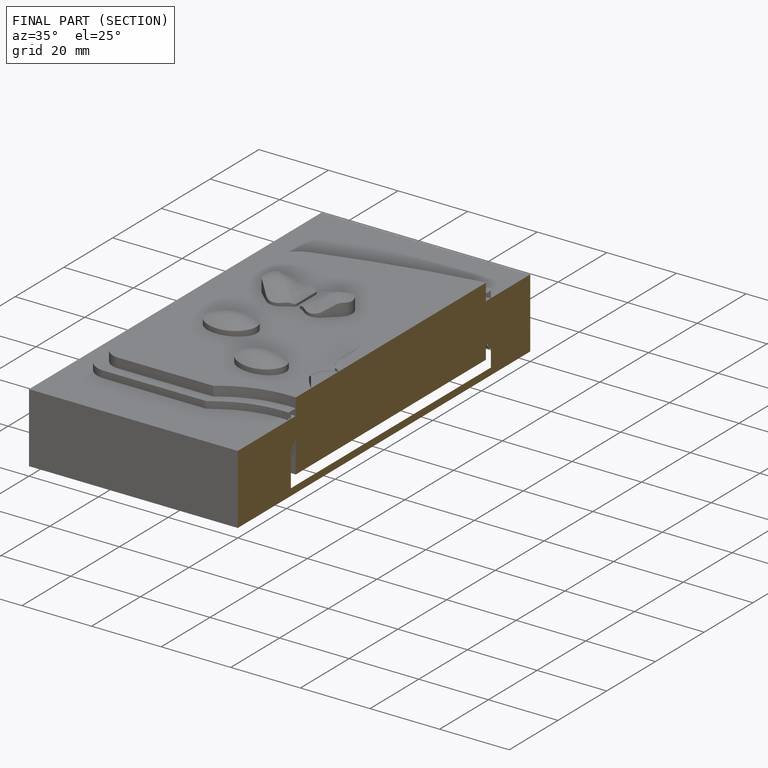
[diagram: finished part — half-section view (interior)]
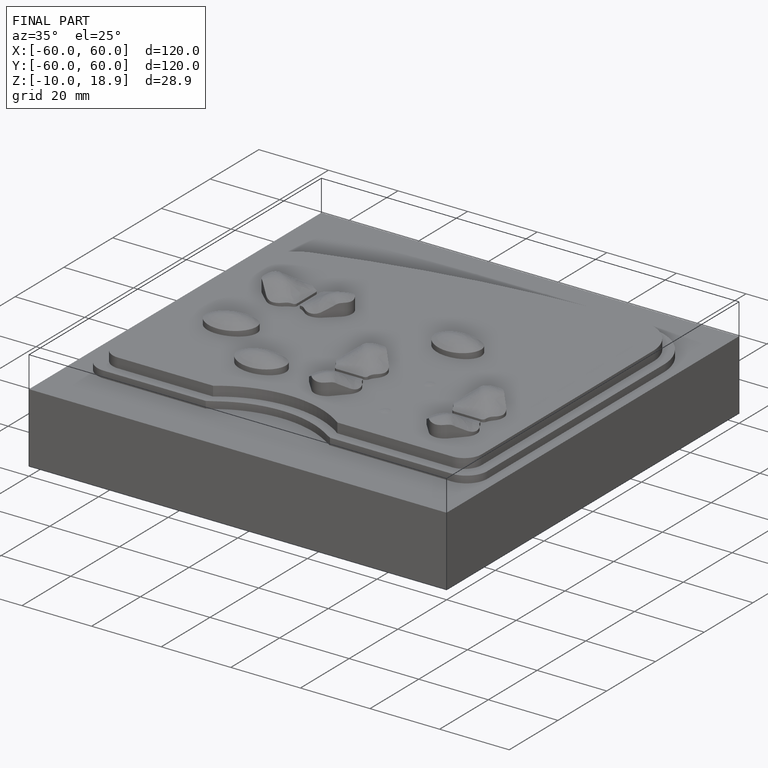
[diagram: finished part — iso view with bounding-box wireframe]
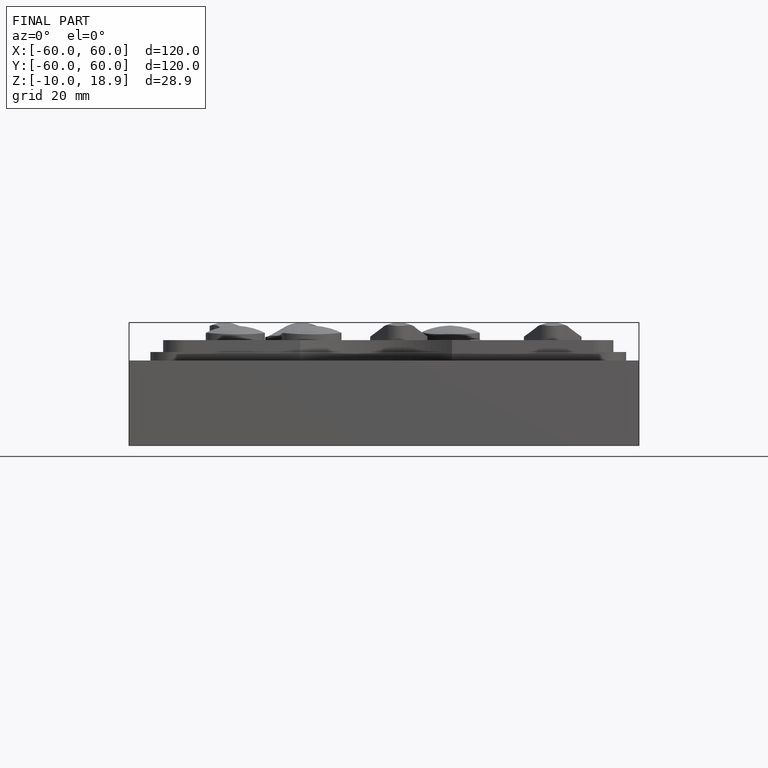
[diagram: finished part — front view with bounding-box wireframe]
